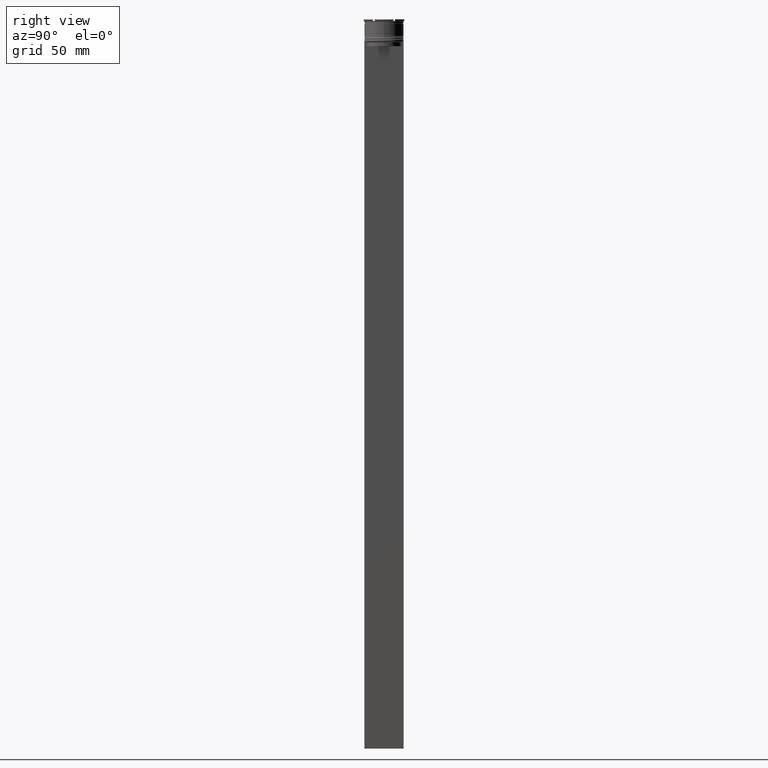
[diagram: clean part render]
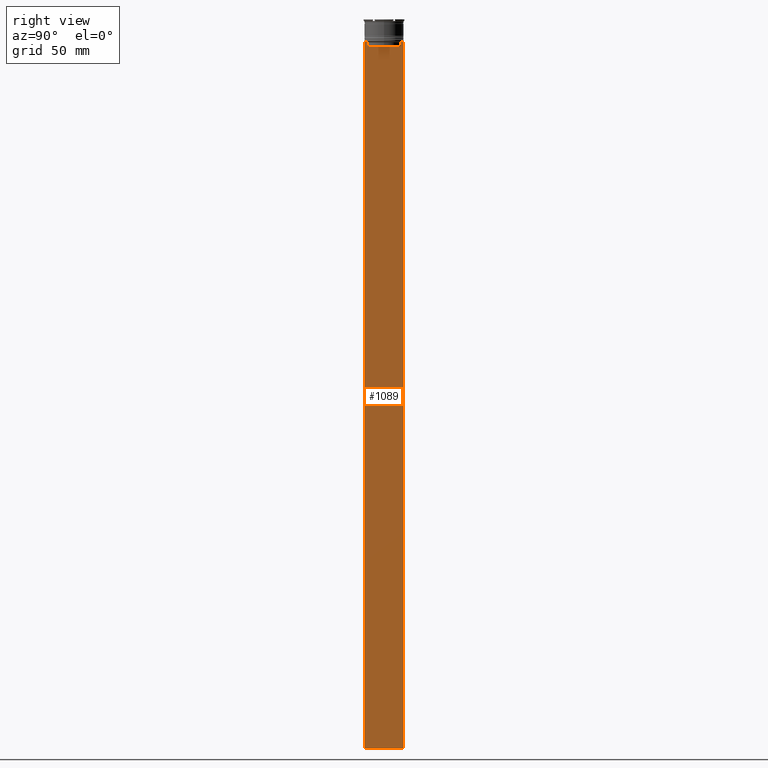
[diagram: same view with one face highlighted and labeled with its STEP entity id]
A machine part, right view. The second image highlights one B-rep face of the part: STEP entity #1089.
In plain terms, the highlighted planar face has unit normal (-1, 0, 0).
Its self-contained STEP definition (entity closure, byte-faithful):
#40 = VERTEX_POINT ( 'NONE', #1415 ) ;
#89 = LINE ( 'NONE', #135, #1031 ) ;
#117 = DIRECTION ( 'NONE',  ( 0.000000000000000000, 0.000000000000000000, -1.000000000000000000 ) ) ;
#122 = ORIENTED_EDGE ( 'NONE', *, *, #2407, .T. ) ;
#135 = CARTESIAN_POINT ( 'NONE',  ( 0.5000000000000000000, 10.90000000000000213, -17.00000000000000000 ) ) ;
#155 = VERTEX_POINT ( 'NONE', #1295 ) ;
#172 = DIRECTION ( 'NONE',  ( -1.000000000000000000, 0.000000000000000000, 0.000000000000000000 ) ) ;
#199 = CARTESIAN_POINT ( 'NONE',  ( 0.5000000000000000000, 12.38991525394746773, -14.00000000000000178 ) ) ;
#206 = VECTOR ( 'NONE', #690, 1000.000000000000000 ) ;
#211 = AXIS2_PLACEMENT_3D ( 'NONE', #1493, #172, #2377 ) ;
#259 = EDGE_CURVE ( 'NONE', #2139, #40, #1099, .T. ) ;
#328 = VECTOR ( 'NONE', #117, 1000.000000000000000 ) ;
#362 = CARTESIAN_POINT ( 'NONE',  ( 0.5000000000000000000, -11.38902980942626719, -14.00000000000000178 ) ) ;
#462 = DIRECTION ( 'NONE',  ( 0.000000000000000000, -1.000000000000000000, 0.000000000000000000 ) ) ;
#483 = VERTEX_POINT ( 'NONE', #1875 ) ;
#491 = DIRECTION ( 'NONE',  ( 0.000000000000000000, 1.000000000000000000, 0.000000000000000000 ) ) ;
#493 = VERTEX_POINT ( 'NONE', #1002 ) ;
#605 = ORIENTED_EDGE ( 'NONE', *, *, #1348, .T. ) ;
#606 = PLANE ( 'NONE',  #211 ) ;
#672 = CARTESIAN_POINT ( 'NONE',  ( 0.5000000000000000000, -12.49999999999999289, -14.00000000000000178 ) ) ;
#690 = DIRECTION ( 'NONE',  ( 0.000000000000000000, 0.000000000000000000, -1.000000000000000000 ) ) ;
#699 = VERTEX_POINT ( 'NONE', #2574 ) ;
#711 = VECTOR ( 'NONE', #462, 1000.000000000000000 ) ;
#721 = B_SPLINE_CURVE_WITH_KNOTS ( 'NONE', 3,
 ( #1211, #807, #2584, #2359 ),
 .UNSPECIFIED., .F., .F.,
 ( 4, 4 ),
 ( 0.01935560801904634073, 0.02006307108468586772 ),
 .UNSPECIFIED. ) ;
#725 = B_SPLINE_CURVE_WITH_KNOTS ( 'NONE', 3,
 ( #1497, #2855, #2352, #362 ),
 .UNSPECIFIED., .F., .F.,
 ( 4, 4 ),
 ( 0.05041323384703226551, 0.05112713601261605068 ),
 .UNSPECIFIED. ) ;
#742 = CARTESIAN_POINT ( 'NONE',  ( 0.5000000000000000000, -12.49999999999999289, -14.00000000000000178 ) ) ;
#779 = EDGE_CURVE ( 'NONE', #2646, #1973, #1597, .T. ) ;
#807 = CARTESIAN_POINT ( 'NONE',  ( 0.5000000000000000000, 11.22219891375843304, -14.16667035472756808 ) ) ;
#840 = EDGE_CURVE ( 'NONE', #699, #40, #1772, .T. ) ;
#865 = ORIENTED_EDGE ( 'NONE', *, *, #259, .F. ) ;
#997 = DIRECTION ( 'NONE',  ( 0.000000000000000000, -1.000000000000000000, 0.000000000000000000 ) ) ;
#1002 = CARTESIAN_POINT ( 'NONE',  ( 0.5000000000000000000, 10.88852607105296322, -14.50000000000000000 ) ) ;
#1031 = VECTOR ( 'NONE', #997, 1000.000000000000000 ) ;
#1089 = ADVANCED_FACE ( 'NONE', ( #2128 ), #606, .F. ) ;
#1099 = LINE ( 'NONE', #1250, #1312 ) ;
#1128 = CARTESIAN_POINT ( 'NONE',  ( 0.5000000000000000000, -12.49999999999999289, 11.01999200639360765 ) ) ;
#1211 = CARTESIAN_POINT ( 'NONE',  ( 0.5000000000000000000, 11.38902980942626719, -14.00000000000000178 ) ) ;
#1250 = CARTESIAN_POINT ( 'NONE',  ( 0.5000000000000000000, 12.50000000000000711, 11.01999200639360765 ) ) ;
#1295 = CARTESIAN_POINT ( 'NONE',  ( 0.5000000000000000000, -10.88852607105296322, -14.50000000000000000 ) ) ;
#1312 = VECTOR ( 'NONE', #1926, 1000.000000000000000 ) ;
#1348 = EDGE_CURVE ( 'NONE', #1973, #1601, #2300, .T. ) ;
#1350 = DIRECTION ( 'NONE',  ( 0.000000000000000000, -1.000000000000000000, 0.000000000000000000 ) ) ;
#1373 = ORIENTED_EDGE ( 'NONE', *, *, #1721, .T. ) ;
#1415 = CARTESIAN_POINT ( 'NONE',  ( 0.5000000000000000000, 12.50000000000000711, -464.0000000000000000 ) ) ;
#1426 = ORIENTED_EDGE ( 'NONE', *, *, #2657, .T. ) ;
#1436 = LINE ( 'NONE', #2766, #328 ) ;
#1444 = VECTOR ( 'NONE', #2120, 1000.000000000000000 ) ;
#1491 = VECTOR ( 'NONE', #2520, 1000.000000000000000 ) ;
#1493 = CARTESIAN_POINT ( 'NONE',  ( 0.5000000000000000000, -12.49999999999999289, 11.01999200639360765 ) ) ;
#1497 = CARTESIAN_POINT ( 'NONE',  ( 0.5000000000000000000, -10.88852607105296322, -14.50000000000000000 ) ) ;
#1507 = ORIENTED_EDGE ( 'NONE', *, *, #1883, .T. ) ;
#1523 = EDGE_LOOP ( 'NONE', ( #1373, #2832, #2498, #2187, #1881, #1507, #2731, #605, #122, #2716, #865, #1426 ) ) ;
#1560 = CARTESIAN_POINT ( 'NONE',  ( 0.5000000000000000000, -11.38902980942626719, -14.00000000000000178 ) ) ;
#1595 = VECTOR ( 'NONE', #491, 1000.000000000000000 ) ;
#1597 = LINE ( 'NONE', #1791, #711 ) ;
#1601 = VERTEX_POINT ( 'NONE', #2237 ) ;
#1611 = CARTESIAN_POINT ( 'NONE',  ( 0.5000000000000000000, -10.88852607105296144, -17.00000000000000000 ) ) ;
#1644 = CARTESIAN_POINT ( 'NONE',  ( 0.5000000000000000000, -12.49999999999999289, -14.00000000000000178 ) ) ;
#1696 = EDGE_CURVE ( 'NONE', #493, #483, #1436, .T. ) ;
#1721 = EDGE_CURVE ( 'NONE', #2267, #2447, #2340, .T. ) ;
#1772 = LINE ( 'NONE', #2648, #1595 ) ;
#1791 = CARTESIAN_POINT ( 'NONE',  ( 0.5000000000000000000, -12.49999999999999289, -14.00000000000000178 ) ) ;
#1828 = VECTOR ( 'NONE', #1350, 1000.000000000000000 ) ;
#1875 = CARTESIAN_POINT ( 'NONE',  ( 0.5000000000000000000, 10.88852607105296144, -17.00000000000000000 ) ) ;
#1881 = ORIENTED_EDGE ( 'NONE', *, *, #2089, .T. ) ;
#1883 = EDGE_CURVE ( 'NONE', #155, #2646, #725, .T. ) ;
#1895 = DIRECTION ( 'NONE',  ( -0.000000000000000000, -0.000000000000000000, 1.000000000000000000 ) ) ;
#1926 = DIRECTION ( 'NONE',  ( 0.000000000000000000, 0.000000000000000000, -1.000000000000000000 ) ) ;
#1973 = VERTEX_POINT ( 'NONE', #2785 ) ;
#2089 = EDGE_CURVE ( 'NONE', #2865, #155, #2537, .T. ) ;
#2117 = EDGE_CURVE ( 'NONE', #483, #2865, #89, .T. ) ;
#2120 = DIRECTION ( 'NONE',  ( 0.000000000000000000, -1.000000000000000000, 0.000000000000000000 ) ) ;
#2128 = FACE_OUTER_BOUND ( 'NONE', #1523, .T. ) ;
#2139 = VERTEX_POINT ( 'NONE', #2346 ) ;
#2141 = CARTESIAN_POINT ( 'NONE',  ( 0.5000000000000000000, -10.88852607105296322, 0.000000000000000000 ) ) ;
#2187 = ORIENTED_EDGE ( 'NONE', *, *, #2117, .T. ) ;
#2194 = VECTOR ( 'NONE', #1895, 1000.000000000000000 ) ;
#2204 = EDGE_CURVE ( 'NONE', #2447, #493, #721, .T. ) ;
#2227 = LINE ( 'NONE', #1128, #206 ) ;
#2237 = CARTESIAN_POINT ( 'NONE',  ( 0.5000000000000000000, -12.49999999999999289, -14.00000000000000178 ) ) ;
#2258 = CARTESIAN_POINT ( 'NONE',  ( 0.5000000000000000000, 11.38902980942626719, -14.00000000000000178 ) ) ;
#2267 = VERTEX_POINT ( 'NONE', #199 ) ;
#2300 = LINE ( 'NONE', #742, #1491 ) ;
#2340 = LINE ( 'NONE', #1644, #1444 ) ;
#2346 = CARTESIAN_POINT ( 'NONE',  ( 0.5000000000000000000, 12.50000000000000711, -14.00000000000000178 ) ) ;
#2352 = CARTESIAN_POINT ( 'NONE',  ( 0.5000000000000000000, -11.22219891450652973, -14.16667035398018903 ) ) ;
#2359 = CARTESIAN_POINT ( 'NONE',  ( 0.5000000000000000000, 10.88852607105296322, -14.50000000000000000 ) ) ;
#2377 = DIRECTION ( 'NONE',  ( 0.000000000000000000, 0.000000000000000000, 1.000000000000000000 ) ) ;
#2407 = EDGE_CURVE ( 'NONE', #1601, #699, #2227, .T. ) ;
#2447 = VERTEX_POINT ( 'NONE', #2258 ) ;
#2498 = ORIENTED_EDGE ( 'NONE', *, *, #1696, .T. ) ;
#2520 = DIRECTION ( 'NONE',  ( 0.000000000000000000, -1.000000000000000000, 0.000000000000000000 ) ) ;
#2537 = LINE ( 'NONE', #2141, #2194 ) ;
#2574 = CARTESIAN_POINT ( 'NONE',  ( 0.5000000000000000000, -12.49999999999999289, -464.0000000000000000 ) ) ;
#2584 = CARTESIAN_POINT ( 'NONE',  ( 0.5000000000000000000, 11.05536450345590538, -14.33333719074559376 ) ) ;
#2646 = VERTEX_POINT ( 'NONE', #1560 ) ;
#2648 = CARTESIAN_POINT ( 'NONE',  ( 0.5000000000000000000, -12.49999999999999289, -464.0000000000000000 ) ) ;
#2657 = EDGE_CURVE ( 'NONE', #2139, #2267, #2665, .T. ) ;
#2665 = LINE ( 'NONE', #672, #1828 ) ;
#2716 = ORIENTED_EDGE ( 'NONE', *, *, #840, .T. ) ;
#2731 = ORIENTED_EDGE ( 'NONE', *, *, #779, .T. ) ;
#2766 = CARTESIAN_POINT ( 'NONE',  ( 0.5000000000000000000, 10.88852607105296322, 0.000000000000000000 ) ) ;
#2785 = CARTESIAN_POINT ( 'NONE',  ( 0.5000000000000000000, -12.38991525394746773, -14.00000000000000178 ) ) ;
#2832 = ORIENTED_EDGE ( 'NONE', *, *, #2204, .T. ) ;
#2855 = CARTESIAN_POINT ( 'NONE',  ( 0.5000000000000000000, -11.05536450423839234, -14.33333718996393102 ) ) ;
#2865 = VERTEX_POINT ( 'NONE', #1611 ) ;